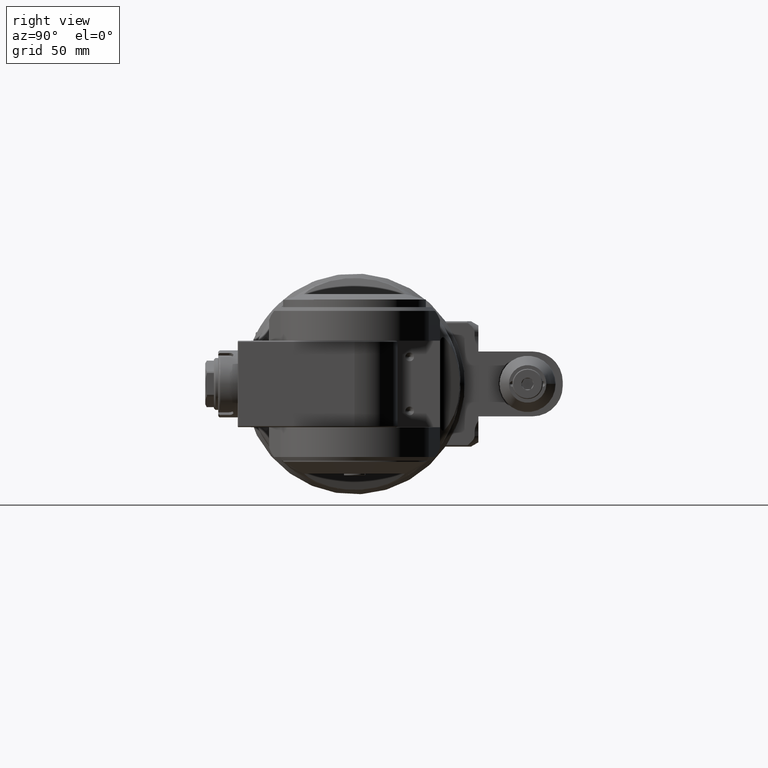
[diagram: clean part render]
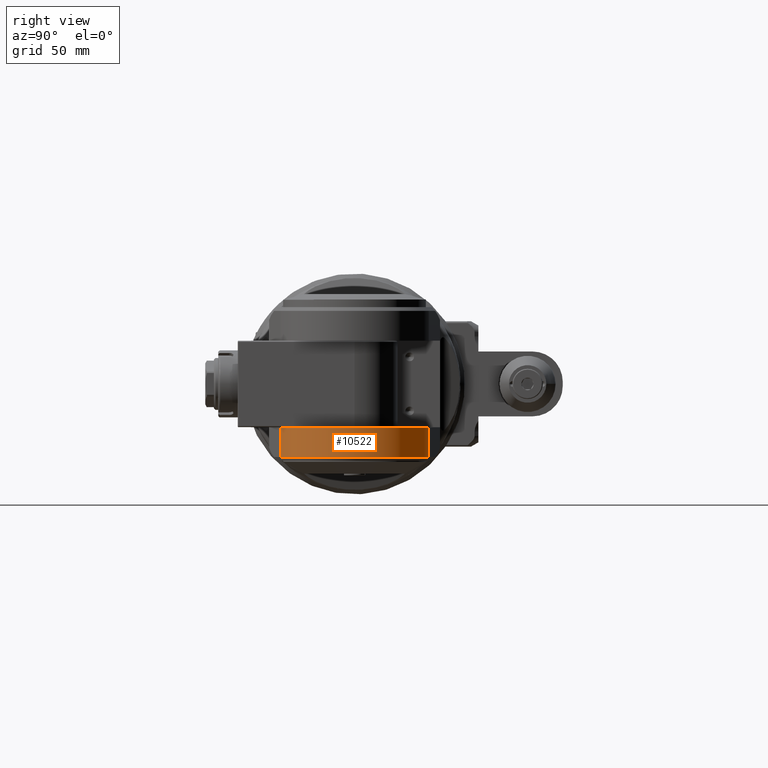
[diagram: same view with one face highlighted and labeled with its STEP entity id]
A machine part, right view. The second image highlights one B-rep face of the part: STEP entity #10522.
In plain terms, the highlighted cylindrical surface (partial cylindrical patch) has radius 35.5 mm, axis along (-0, 0, -1).
Its self-contained STEP definition (entity closure, byte-faithful):
#1207=FACE_OUTER_BOUND('',#1894,.T.);
#1894=EDGE_LOOP('',(#8716,#8717,#8718,#8719));
#2478=CIRCLE('',#11467,35.5);
#2481=CIRCLE('',#11478,35.5);
#3265=LINE('',#58688,#4008);
#3270=LINE('',#58701,#4013);
#4008=VECTOR('',#13668,13.76794919243);
#4013=VECTOR('',#13683,13.76794919243);
#4944=VERTEX_POINT('',#58670);
#4945=VERTEX_POINT('',#58672);
#4948=VERTEX_POINT('',#58687);
#4949=VERTEX_POINT('',#58691);
#6275=EDGE_CURVE('',#4945,#4944,#2478,.T.);
#6283=EDGE_CURVE('',#4948,#4945,#3265,.T.);
#6287=EDGE_CURVE('',#4948,#4949,#2481,.T.);
#6291=EDGE_CURVE('',#4944,#4949,#3270,.T.);
#8716=ORIENTED_EDGE('',*,*,#6275,.T.);
#8717=ORIENTED_EDGE('',*,*,#6291,.T.);
#8718=ORIENTED_EDGE('',*,*,#6287,.F.);
#8719=ORIENTED_EDGE('',*,*,#6283,.T.);
#10121=CYLINDRICAL_SURFACE('',#11491,35.5);
#10522=ADVANCED_FACE('',(#1207),#10121,.T.);
#11467=AXIS2_PLACEMENT_3D('',#58673,#13646,#13647);
#11478=AXIS2_PLACEMENT_3D('',#58694,#13674,#13675);
#11491=AXIS2_PLACEMENT_3D('',#58711,#13702,#13703);
#13646=DIRECTION('center_axis',(1.,0.,0.));
#13647=DIRECTION('ref_axis',(0.,-0.258819045102493,0.965925826289076));
#13668=DIRECTION('',(-1.,1.754687838994E-14,0.));
#13674=DIRECTION('center_axis',(1.,0.,0.));
#13675=DIRECTION('ref_axis',(0.,-0.258819045102493,0.965925826289076));
#13683=DIRECTION('',(1.,0.,0.));
#13702=DIRECTION('center_axis',(-1.,0.,0.));
#13703=DIRECTION('ref_axis',(0.,0.,1.));
#58670=CARTESIAN_POINT('',(-33.76794919243,-9.18807610109999,-34.29036683326));
#58672=CARTESIAN_POINT('',(-33.76794919243,-9.18807610109999,34.29036683326));
#58673=CARTESIAN_POINT('Origin',(-33.76794919243,0.,0.));
#58687=CARTESIAN_POINT('',(-20.,-9.18807610109999,34.29036683326));
#58688=CARTESIAN_POINT('',(-20.,-9.18807610109999,34.29036683326));
#58691=CARTESIAN_POINT('',(-20.,-9.18807610109999,-34.29036683326));
#58694=CARTESIAN_POINT('Origin',(-20.,0.,0.));
#58701=CARTESIAN_POINT('',(-33.76794919243,-9.18807610109999,-34.29036683326));
#58711=CARTESIAN_POINT('Origin',(51.43760889292,0.,0.));